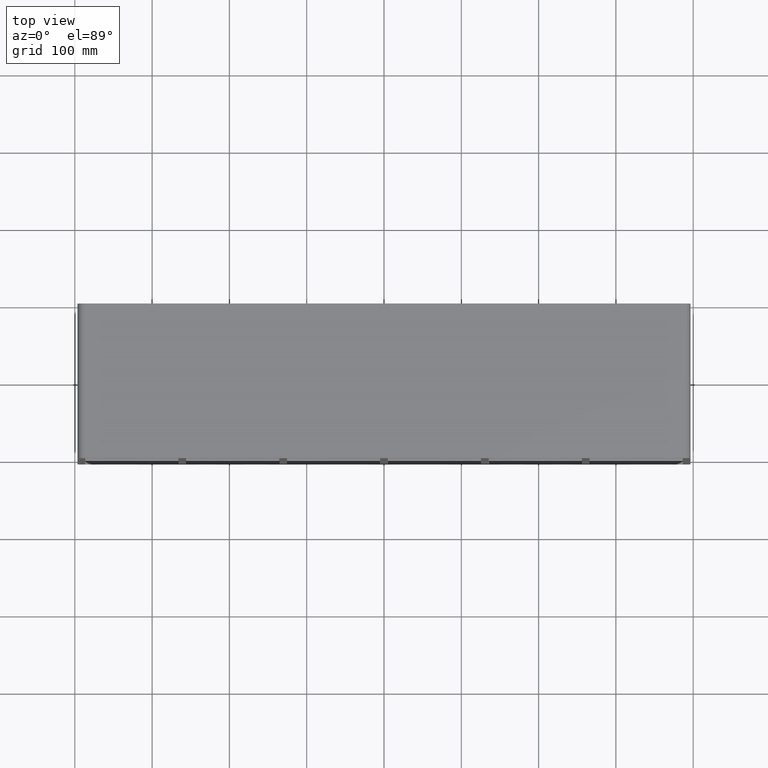
[diagram: clean part render]
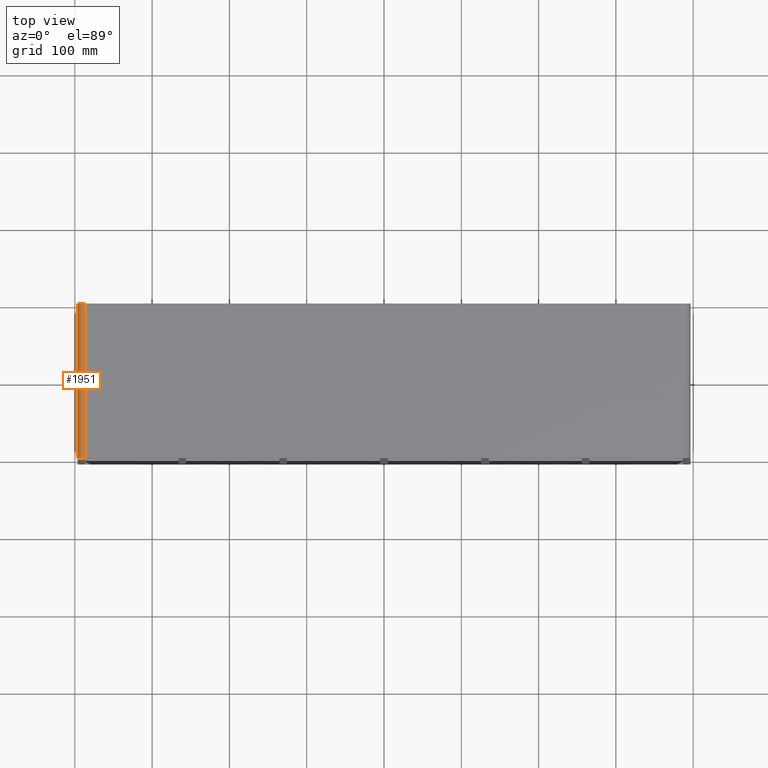
[diagram: same view with one face highlighted and labeled with its STEP entity id]
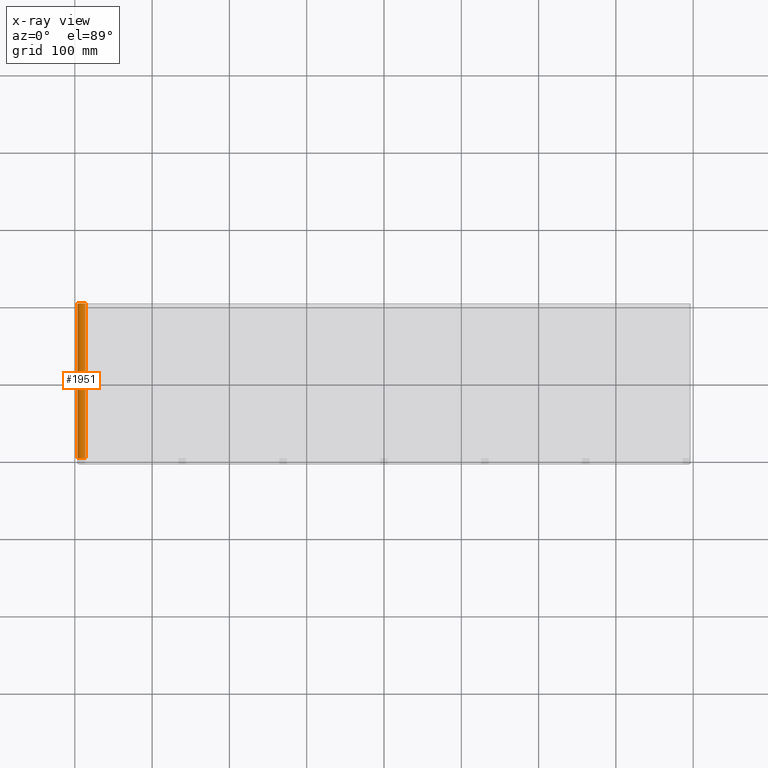
[diagram: x-ray of the same camera — body ghosted, the highlighted face saturated]
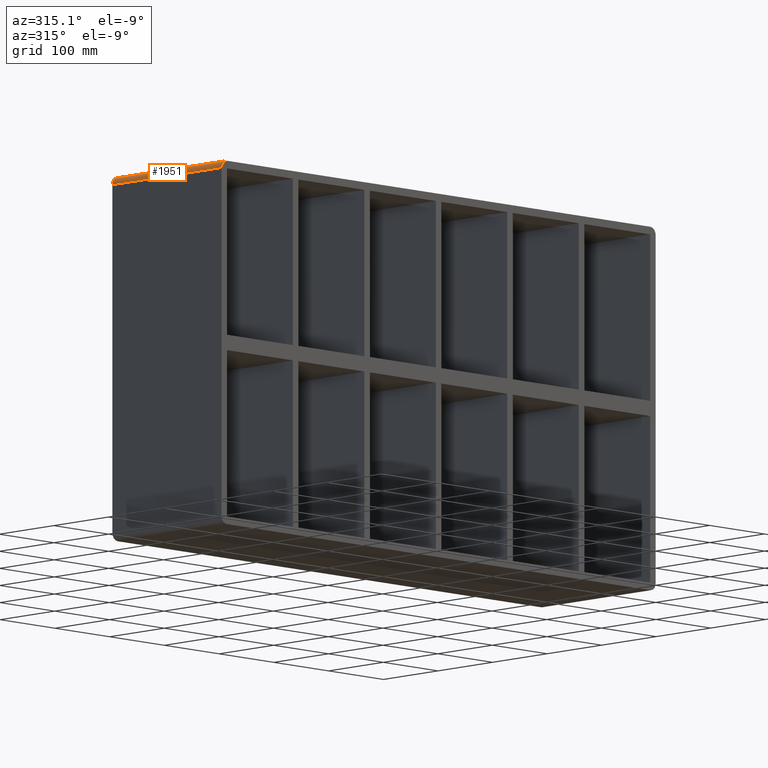
[diagram: same view with one face highlighted and labeled with its STEP entity id]
A machine part, top view. The second image highlights one B-rep face of the part: STEP entity #1951.
The next image is the same camera in x-ray: the body ghosted, the highlighted face saturated — about 0% of this face is hidden behind the body in this view.
A second angle (auxiliary view) of the same face is appended — the face is thin or edge-on in the first view.
In plain terms, the highlighted cylindrical surface (edge-blend (fillet) strip) has radius 10 mm, axis along (0, 1, 0).
Its self-contained STEP definition (entity closure, byte-faithful):
#886=CARTESIAN_POINT('',(-386.50000000000006,-3.0,238.0));
#887=VERTEX_POINT('',#886);
#894=CARTESIAN_POINT('',(-396.50000000000006,-3.0,228.0));
#895=VERTEX_POINT('',#894);
#896=CARTESIAN_POINT('',(-386.50000000000006,-3.0,228.0));
#897=DIRECTION('',(0.0,1.0,0.0));
#898=DIRECTION('',(-0.707106781186547,0.0,0.707106781186547));
#899=AXIS2_PLACEMENT_3D('',#896,#897,#898);
#900=CIRCLE('',#899,9.999999999999998);
#901=EDGE_CURVE('',#895,#887,#900,.T.);
#1245=CARTESIAN_POINT('',(-396.50000000000006,197.0,228.0));
#1246=VERTEX_POINT('',#1245);
#1253=CARTESIAN_POINT('',(-386.50000000000006,197.0,238.0));
#1254=VERTEX_POINT('',#1253);
#1255=CARTESIAN_POINT('',(-386.50000000000006,197.0,228.0));
#1256=DIRECTION('',(0.0,-1.0,0.0));
#1257=DIRECTION('',(-0.707106781186547,0.0,0.707106781186547));
#1258=AXIS2_PLACEMENT_3D('',#1255,#1256,#1257);
#1259=CIRCLE('',#1258,9.999999999999998);
#1260=EDGE_CURVE('',#1254,#1246,#1259,.T.);
#1925=CARTESIAN_POINT('',(-386.50000000000006,-3.0,238.0));
#1926=DIRECTION('',(0.0,1.0,0.0));
#1927=VECTOR('',#1926,200.0);
#1928=LINE('',#1925,#1927);
#1929=EDGE_CURVE('',#887,#1254,#1928,.T.);
#1935=CARTESIAN_POINT('',(-386.50000000000006,0.0,228.0));
#1936=DIRECTION('',(0.0,1.0,0.0));
#1937=DIRECTION('',(-0.707106781186547,0.0,0.707106781186547));
#1938=AXIS2_PLACEMENT_3D('',#1935,#1936,#1937);
#1939=CYLINDRICAL_SURFACE('',#1938,10.0);
#1940=ORIENTED_EDGE('',*,*,#1260,.T.);
#1941=CARTESIAN_POINT('',(-396.50000000000006,197.0,228.0));
#1942=DIRECTION('',(0.0,-1.0,0.0));
#1943=VECTOR('',#1942,200.0);
#1944=LINE('',#1941,#1943);
#1945=EDGE_CURVE('',#1246,#895,#1944,.T.);
#1946=ORIENTED_EDGE('',*,*,#1945,.T.);
#1947=ORIENTED_EDGE('',*,*,#901,.T.);
#1948=ORIENTED_EDGE('',*,*,#1929,.T.);
#1949=EDGE_LOOP('',(#1940,#1946,#1947,#1948));
#1950=FACE_OUTER_BOUND('',#1949,.T.);
#1951=ADVANCED_FACE('',(#1950),#1939,.T.);